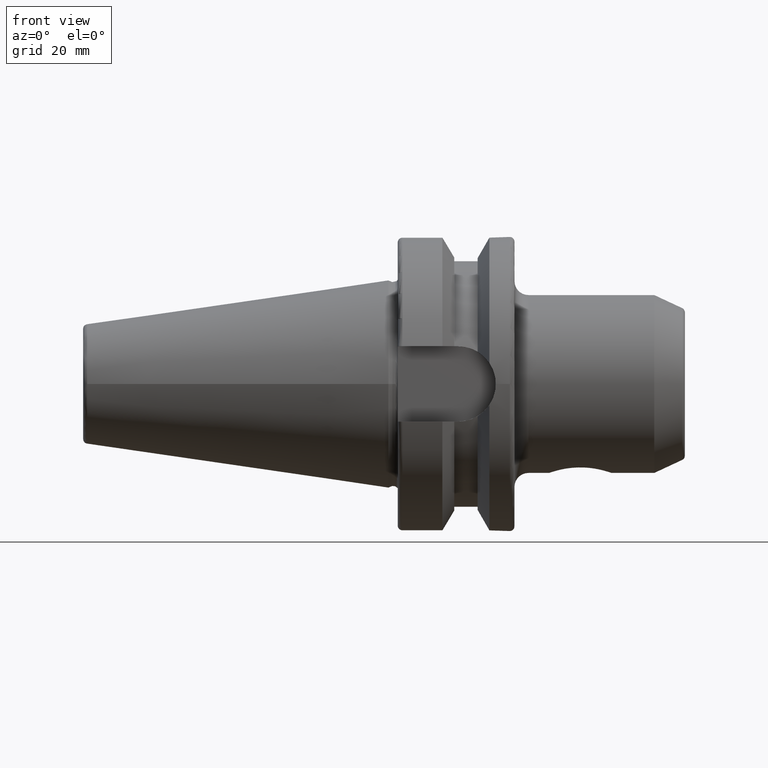
[diagram: clean part render]
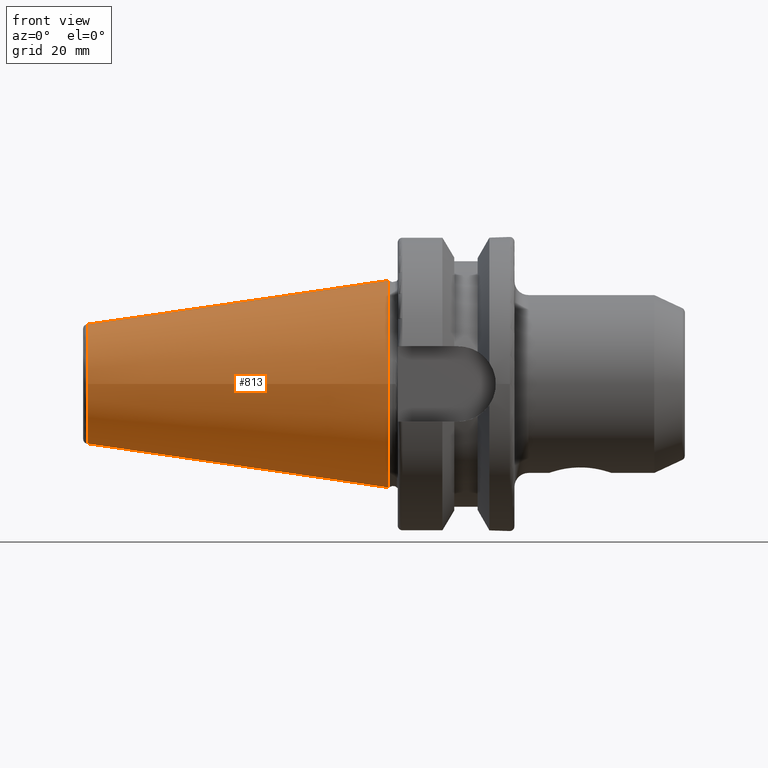
[diagram: same view with one face highlighted and labeled with its STEP entity id]
A machine part, front view. The second image highlights one B-rep face of the part: STEP entity #813.
In plain terms, the highlighted conical surface has half-angle 8.297 deg.
Its self-contained STEP definition (entity closure, byte-faithful):
#40=CONICAL_SURFACE('',#917,17.5186442890469,0.144812498238939);
#90=CIRCLE('',#913,12.8122885780937);
#91=CIRCLE('',#914,12.8122885780937);
#94=CIRCLE('',#918,22.225);
#160=FACE_OUTER_BOUND('',#215,.T.);
#215=EDGE_LOOP('',(#700,#701,#702,#703,#704));
#293=LINE('',#1719,#337);
#337=VECTOR('',#1125,17.5186442890469);
#407=VERTEX_POINT('',#1709);
#408=VERTEX_POINT('',#1710);
#410=VERTEX_POINT('',#1717);
#511=EDGE_CURVE('',#407,#408,#90,.T.);
#512=EDGE_CURVE('',#408,#407,#91,.T.);
#515=EDGE_CURVE('',#410,#410,#94,.T.);
#516=EDGE_CURVE('',#410,#407,#293,.T.);
#700=ORIENTED_EDGE('',*,*,#515,.F.);
#701=ORIENTED_EDGE('',*,*,#516,.T.);
#702=ORIENTED_EDGE('',*,*,#511,.T.);
#703=ORIENTED_EDGE('',*,*,#512,.T.);
#704=ORIENTED_EDGE('',*,*,#516,.F.);
#813=ADVANCED_FACE('',(#160),#40,.T.);
#913=AXIS2_PLACEMENT_3D('',#1711,#1113,#1114);
#914=AXIS2_PLACEMENT_3D('',#1712,#1115,#1116);
#917=AXIS2_PLACEMENT_3D('',#1716,#1121,#1122);
#918=AXIS2_PLACEMENT_3D('',#1718,#1123,#1124);
#1113=DIRECTION('center_axis',(1.,0.,0.));
#1114=DIRECTION('ref_axis',(0.,0.,-1.));
#1115=DIRECTION('center_axis',(1.,0.,0.));
#1116=DIRECTION('ref_axis',(0.,0.,-1.));
#1121=DIRECTION('center_axis',(1.,0.,0.));
#1122=DIRECTION('ref_axis',(0.,1.,0.));
#1123=DIRECTION('center_axis',(1.,0.,0.));
#1124=DIRECTION('ref_axis',(0.,0.,-1.));
#1125=DIRECTION('',(-0.989532981063282,0.144306893071729,1.76724974695192E-17));
#1709=CARTESIAN_POINT('',(-64.5443068930717,-12.8122885780937,-1.56905281969147E-15));
#1710=CARTESIAN_POINT('',(-64.5443068930717,-1.56905281969147E-15,12.8122885780937));
#1711=CARTESIAN_POINT('Origin',(-64.5443068930717,0.,0.));
#1712=CARTESIAN_POINT('Origin',(-64.5443068930717,0.,0.));
#1716=CARTESIAN_POINT('Origin',(-32.2721534465359,0.,0.));
#1717=CARTESIAN_POINT('',(4.44089209850063E-15,-22.225,-2.72177751110499E-15));
#1718=CARTESIAN_POINT('Origin',(0.,0.,0.));
#1719=CARTESIAN_POINT('',(-32.2721534465359,-17.5186442890469,-2.14541516539823E-15));